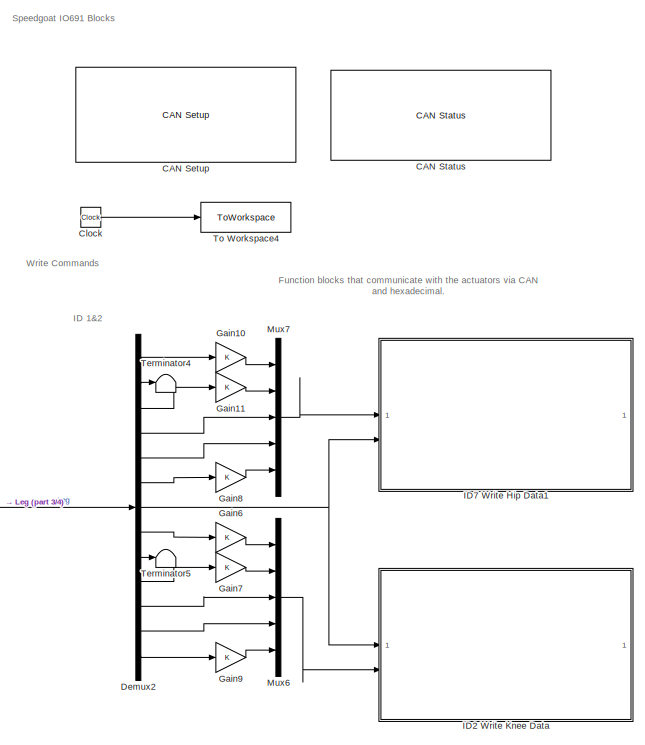
[diagram: root canvas - part 1/4, top right region]
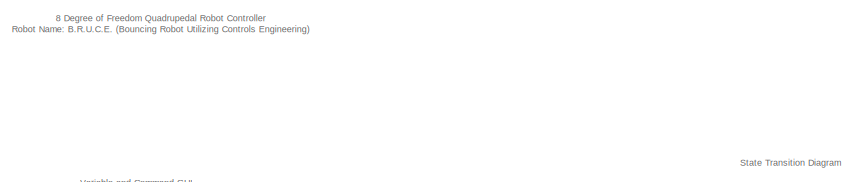
[diagram: root canvas - part 2/4, top left region]
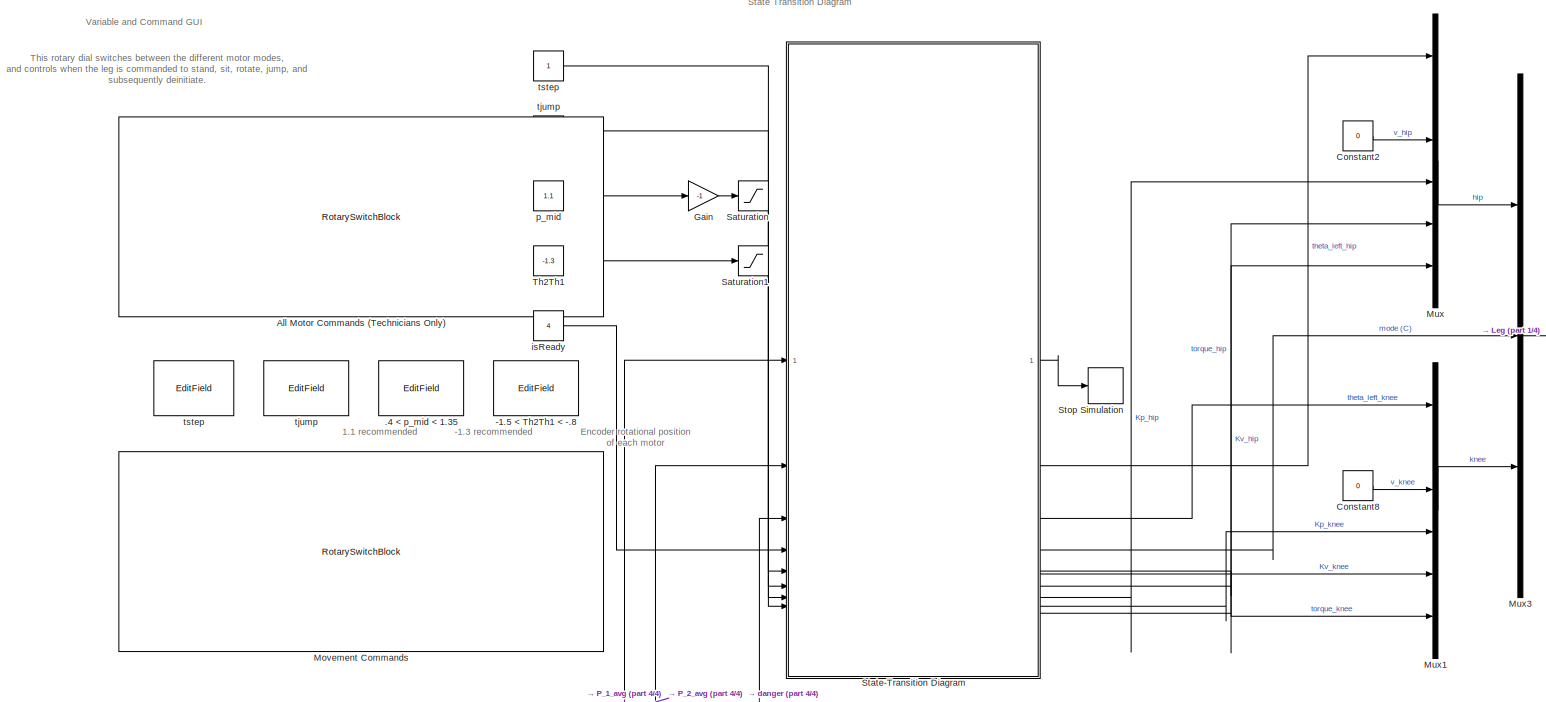
[diagram: root canvas - part 3/4, central region]
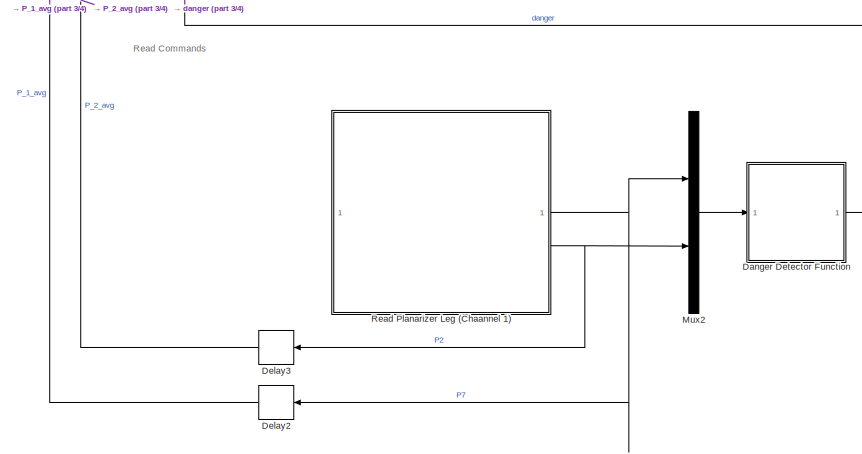
[diagram: root canvas - part 4/4, bottom center region]
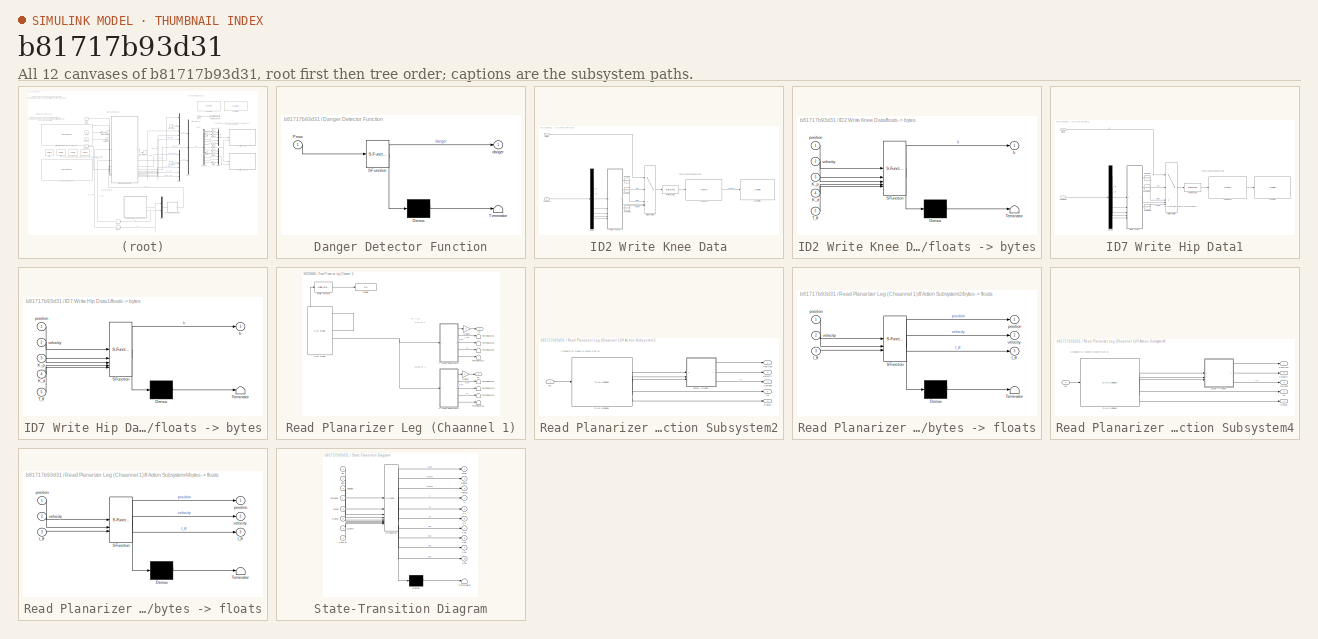
[diagram: thumbnail index - all 12 canvases of the model, root first then tree order]
MODEL slx_b81717b93d31
KIND model
CONFIG AbsTol = auto
CONFIG EnableMultiTasking = off
CONFIG FixedStep = 0.005
CONFIG MaxStep = auto
CONFIG MinStep = auto
CONFIG RelTol = 1e-3
CONFIG SampleTimeConstraint = Unconstrained
CONFIG SolverName = FixedStepAuto
CONFIG StartTime = 0.0
CONFIG StopTime = inf
BLOCK [Constant]  tjump 
  Value = 0.12
BLOCK [Constant]  tstep 
BLOCK [EditField] -1.5 < Th2Th1 < -.8
  Alignment = Center
  LabelPosition = Hide
  ShowInitialText = on
BLOCK [EditField] .4 < p_mid < 1.35
  Alignment = Center
  LabelPosition = Hide
  ShowInitialText = on
BLOCK [RotarySwitchBlock] All Motor Commands (Technicians Only) 
BLOCK [Reference] CAN Setup   REF=speedgoatlib_IO691/Legacy/CAN Setup 
  SourceBlock = speedgoatlib_IO691/Legacy/CAN Setup
  SourceProductName = Simulink Real-Time: Speedgoat I/O Blockset
  SourceType = setup_IO691
BLOCK [Reference] CAN Status  REF=speedgoatlib_IO691/Legacy/CAN Status
  SourceBlock = speedgoatlib_IO691/Legacy/CAN Status
  SourceProductName = Simulink Real-Time: Speedgoat I/O Blockset
  SourceType = status_IO691
  UserDataPersistent = on
BLOCK [Clock] Clock
BLOCK [Constant] Constant2
  Value = 0
BLOCK [Constant] Constant8
  Value = 0
BLOCK [SubSystem] Danger Detector Function
  ErrorFcn = Stateflow.Translate.translate
  PermitHierarchicalResolution = ExplicitOnly
  SFBlockType = MATLAB Function
  TreatAsAtomicUnit = on
BLOCK [Demux] Danger Detector Function/ Demux 
  Outputs = 1
BLOCK [S-Function] Danger Detector Function/ SFunction 
  EnableBusSupport = on
  FunctionName = sf_sfun
  PortCounts = [1 2]
  SFcnIsStateOwnerBlock = off
  SFunctionDeploymentMode = off
  Tag = Stateflow S-Function 6
BLOCK [Terminator] Danger Detector Function/ Terminator 
BLOCK [Inport] Danger Detector Function/Pmux
BLOCK [Outport] Danger Detector Function/danger
BLOCK [Delay] Delay2
  DelayLength = 1
  InputPortMap = u0
BLOCK [Delay] Delay3
  DelayLength = 1
  InputPortMap = u0
BLOCK [Demux] Demux2
  Outputs = 13
BLOCK [Gain] Gain
  Gain = -1
BLOCK [Gain] Gain10
BLOCK [Gain] Gain11
BLOCK [Gain] Gain6
BLOCK [Gain] Gain7
BLOCK [Gain] Gain8
BLOCK [Gain] Gain9
BLOCK [SubSystem] ID2 Write Knee Data
  TreatAsAtomicUnit = on
BLOCK [Reference] ID2 Write Knee Data/Byte Packing  REF=slrealtimeutilitieslib/Byte Packing
  SourceBlock = slrealtimeutilitieslib/Byte Packing
  SourceType = slrealtimebytepacking
BLOCK [Reference] ID2 Write Knee Data/CAN Pack1  REF=canmsglib/CAN Pack
  SourceBlock = canmsglib/CAN Pack
  SourceType = CAN Pack
BLOCK [Reference] ID2 Write Knee Data/CAN Write1  REF=speedgoatlib_IO691/Legacy/CAN Write
  SourceBlock = speedgoatlib_IO691/Legacy/CAN Write
  SourceProductName = Simulink Real-Time: Speedgoat I/O Blockset
  SourceType = write_IO691
BLOCK [Inport] ID2 Write Knee Data/Command
  Port = 2
BLOCK [Constant] ID2 Write Knee Data/Constant
  Value = [0xFF, 0xFF, 0xFF, 0xFF, 0xFF, 0xFF, 0xFF, 0xFE]
BLOCK [Constant] ID2 Write Knee Data/Constant1
  Value = [0xFF, 0xFF, 0xFF, 0xFF, 0xFF, 0xFF, 0xFF, 0xFC]
BLOCK [Constant] ID2 Write Knee Data/Constant2
  Value = [0xFF, 0xFF, 0xFF, 0xFF, 0xFF, 0xFF, 0xFF, 0xFD]
BLOCK [Demux] ID2 Write Knee Data/Demux
  Outputs = 5
BLOCK [Inport] ID2 Write Knee Data/Mode
BLOCK [MultiPortSwitch] ID2 Write Knee Data/Multiport Switch
  DiagnosticForDefault = None
  InputSameDT = off
  Inputs = 4
  SaturateOnIntegerOverflow = off
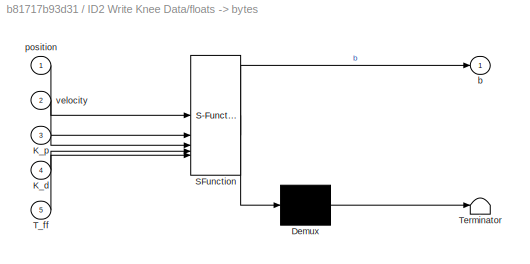
BLOCK [SubSystem] ID2 Write Knee Data/floats -> bytes
  ErrorFcn = Stateflow.Translate.translate
  PermitHierarchicalResolution = ExplicitOnly
  SFBlockType = MATLAB Function
  TreatAsAtomicUnit = on
BLOCK [Demux] ID2 Write Knee Data/floats -> bytes/ Demux 
  Outputs = 1
BLOCK [S-Function] ID2 Write Knee Data/floats -> bytes/ SFunction 
  EnableBusSupport = on
  FunctionName = sf_sfun
  PortCounts = [5 2]
  SFcnIsStateOwnerBlock = off
  SFunctionDeploymentMode = off
  Tag = Stateflow S-Function 13
BLOCK [Terminator] ID2 Write Knee Data/floats -> bytes/ Terminator 
BLOCK [Inport] ID2 Write Knee Data/floats -> bytes/K_d
  Port = 4
BLOCK [Inport] ID2 Write Knee Data/floats -> bytes/K_p
  Port = 3
BLOCK [Inport] ID2 Write Knee Data/floats -> bytes/T_ff
  Port = 5
BLOCK [Outport] ID2 Write Knee Data/floats -> bytes/b
BLOCK [Inport] ID2 Write Knee Data/floats -> bytes/position
BLOCK [Inport] ID2 Write Knee Data/floats -> bytes/velocity
  Port = 2
BLOCK [SubSystem] ID7 Write Hip Data1
  TreatAsAtomicUnit = on
BLOCK [Reference] ID7 Write Hip Data1/Byte Packing  REF=slrealtimeutilitieslib/Byte Packing
  SourceBlock = slrealtimeutilitieslib/Byte Packing
  SourceType = slrealtimebytepacking
BLOCK [Reference] ID7 Write Hip Data1/CAN Pack1  REF=canmsglib/CAN Pack
  SourceBlock = canmsglib/CAN Pack
  SourceType = CAN Pack
BLOCK [Reference] ID7 Write Hip Data1/CAN Write1  REF=speedgoatlib_IO691/Legacy/CAN Write
  SourceBlock = speedgoatlib_IO691/Legacy/CAN Write
  SourceProductName = Simulink Real-Time: Speedgoat I/O Blockset
  SourceType = write_IO691
BLOCK [Inport] ID7 Write Hip Data1/Command
BLOCK [Constant] ID7 Write Hip Data1/Constant
  Value = [0xFF, 0xFF, 0xFF, 0xFF, 0xFF, 0xFF, 0xFF, 0xFE]
BLOCK [Constant] ID7 Write Hip Data1/Constant1
  Value = [0xFF, 0xFF, 0xFF, 0xFF, 0xFF, 0xFF, 0xFF, 0xFC]
BLOCK [Constant] ID7 Write Hip Data1/Constant2
  Value = [0xFF, 0xFF, 0xFF, 0xFF, 0xFF, 0xFF, 0xFF, 0xFD]
BLOCK [Demux] ID7 Write Hip Data1/Demux
  Outputs = 5
BLOCK [Inport] ID7 Write Hip Data1/Mode
  Port = 2
BLOCK [MultiPortSwitch] ID7 Write Hip Data1/Multiport Switch
  DiagnosticForDefault = None
  InputSameDT = off
  Inputs = 4
  SaturateOnIntegerOverflow = off
BLOCK [SubSystem] ID7 Write Hip Data1/floats -> bytes
  ErrorFcn = Stateflow.Translate.translate
  PermitHierarchicalResolution = ExplicitOnly
  SFBlockType = MATLAB Function
  TreatAsAtomicUnit = on
BLOCK [Demux] ID7 Write Hip Data1/floats -> bytes/ Demux 
  Outputs = 1
BLOCK [S-Function] ID7 Write Hip Data1/floats -> bytes/ SFunction 
  EnableBusSupport = on
  FunctionName = sf_sfun
  PortCounts = [5 2]
  SFcnIsStateOwnerBlock = off
  SFunctionDeploymentMode = off
  Tag = Stateflow S-Function 4
BLOCK [Terminator] ID7 Write Hip Data1/floats -> bytes/ Terminator 
BLOCK [Inport] ID7 Write Hip Data1/floats -> bytes/K_d
  Port = 4
BLOCK [Inport] ID7 Write Hip Data1/floats -> bytes/K_p
  Port = 3
BLOCK [Inport] ID7 Write Hip Data1/floats -> bytes/T_ff
  Port = 5
BLOCK [Outport] ID7 Write Hip Data1/floats -> bytes/b
BLOCK [Inport] ID7 Write Hip Data1/floats -> bytes/position
BLOCK [Inport] ID7 Write Hip Data1/floats -> bytes/velocity
  Port = 2
BLOCK [RotarySwitchBlock] Movement Commands
BLOCK [Mux] Mux
  DisplayOption = bar
  Inputs = 6
BLOCK [Mux] Mux1
  DisplayOption = bar
  Inputs = 6
BLOCK [Mux] Mux2
  DisplayOption = bar
  Inputs = 2
BLOCK [Mux] Mux3
  DisplayOption = bar
  Inputs = 3
BLOCK [Mux] Mux6
  DisplayOption = bar
  Inputs = 5
BLOCK [Mux] Mux7
  DisplayOption = bar
  Inputs = 5
BLOCK [SubSystem] Read Planarizer Leg (Chaannel 1)
  TreatAsAtomicUnit = on
BLOCK [Reference] Read Planarizer Leg (Chaannel 1)/CAN Read  REF=speedgoatlib_IO691/Legacy/CAN Read
  SourceBlock = speedgoatlib_IO691/Legacy/CAN Read
  SourceProductName = Simulink Real-Time: Speedgoat I/O Blockset
  SourceType = read_IO691
BLOCK [Display] Read Planarizer Leg (Chaannel 1)/Display
  Decimation = 1
BLOCK [Gain] Read Planarizer Leg (Chaannel 1)/Gain29
BLOCK [Gain] Read Planarizer Leg (Chaannel 1)/Gain30
BLOCK [SubSystem] Read Planarizer Leg (Chaannel 1)/If Action Subsystem2
  TreatAsAtomicUnit = on
BLOCK [Reference] Read Planarizer Leg (Chaannel 1)/If Action Subsystem2/CAN Unpack  REF=canmsglib/CAN Unpack
  SourceBlock = canmsglib/CAN Unpack
  SourceType = CAN Unpack
BLOCK [Outport] Read Planarizer Leg (Chaannel 1)/If Action Subsystem2/Current
  Port = 3
BLOCK [Outport] Read Planarizer Leg (Chaannel 1)/If Action Subsystem2/ID
  Port = 4
BLOCK [Inport] Read Planarizer Leg (Chaannel 1)/If Action Subsystem2/In1
BLOCK [Outport] Read Planarizer Leg (Chaannel 1)/If Action Subsystem2/Position
BLOCK [Outport] Read Planarizer Leg (Chaannel 1)/If Action Subsystem2/Status
  Port = 5
BLOCK [Outport] Read Planarizer Leg (Chaannel 1)/If Action Subsystem2/Velocity
  Port = 2
BLOCK [SubSystem] Read Planarizer Leg (Chaannel 1)/If Action Subsystem2/bytes -> floats
  ErrorFcn = Stateflow.Translate.translate
  PermitHierarchicalResolution = ExplicitOnly
  SFBlockType = MATLAB Function
  TreatAsAtomicUnit = on
BLOCK [Demux] Read Planarizer Leg (Chaannel 1)/If Action Subsystem2/bytes -> floats/ Demux 
  Outputs = 1
BLOCK [S-Function] Read Planarizer Leg (Chaannel 1)/If Action Subsystem2/bytes -> floats/ SFunction 
  EnableBusSupport = on
  FunctionName = sf_sfun
  PortCounts = [3 4]
  SFcnIsStateOwnerBlock = off
  SFunctionDeploymentMode = off
  Tag = Stateflow S-Function 2
BLOCK [Terminator] Read Planarizer Leg (Chaannel 1)/If Action Subsystem2/bytes -> floats/ Terminator 
BLOCK [Outport] Read Planarizer Leg (Chaannel 1)/If Action Subsystem2/bytes -> floats/I_ff
  Port = 3
BLOCK [Inport] Read Planarizer Leg (Chaannel 1)/If Action Subsystem2/bytes -> floats/I_ff 
  Port = 3
BLOCK [Outport] Read Planarizer Leg (Chaannel 1)/If Action Subsystem2/bytes -> floats/position
BLOCK [Inport] Read Planarizer Leg (Chaannel 1)/If Action Subsystem2/bytes -> floats/position 
BLOCK [Outport] Read Planarizer Leg (Chaannel 1)/If Action Subsystem2/bytes -> floats/velocity
  Port = 2
BLOCK [Inport] Read Planarizer Leg (Chaannel 1)/If Action Subsystem2/bytes -> floats/velocity 
  Port = 2
BLOCK [SubSystem] Read Planarizer Leg (Chaannel 1)/If Action Subsystem4
  TreatAsAtomicUnit = on
BLOCK [Reference] Read Planarizer Leg (Chaannel 1)/If Action Subsystem4/CAN Unpack  REF=canmsglib/CAN Unpack
  SourceBlock = canmsglib/CAN Unpack
  SourceType = CAN Unpack
BLOCK [Outport] Read Planarizer Leg (Chaannel 1)/If Action Subsystem4/Current
  Port = 3
BLOCK [Outport] Read Planarizer Leg (Chaannel 1)/If Action Subsystem4/ID
  Port = 4
BLOCK [Inport] Read Planarizer Leg (Chaannel 1)/If Action Subsystem4/In1
BLOCK [Outport] Read Planarizer Leg (Chaannel 1)/If Action Subsystem4/Position
BLOCK [Outport] Read Planarizer Leg (Chaannel 1)/If Action Subsystem4/Status
  Port = 5
BLOCK [Outport] Read Planarizer Leg (Chaannel 1)/If Action Subsystem4/Velocity
  Port = 2
BLOCK [SubSystem] Read Planarizer Leg (Chaannel 1)/If Action Subsystem4/bytes -> floats
  ErrorFcn = Stateflow.Translate.translate
  PermitHierarchicalResolution = ExplicitOnly
  SFBlockType = MATLAB Function
  TreatAsAtomicUnit = on
BLOCK [Demux] Read Planarizer Leg (Chaannel 1)/If Action Subsystem4/bytes -> floats/ Demux 
  Outputs = 1
BLOCK [S-Function] Read Planarizer Leg (Chaannel 1)/If Action Subsystem4/bytes -> floats/ SFunction 
  EnableBusSupport = on
  FunctionName = sf_sfun
  PortCounts = [3 4]
  SFcnIsStateOwnerBlock = off
  SFunctionDeploymentMode = off
  Tag = Stateflow S-Function 1
BLOCK [Terminator] Read Planarizer Leg (Chaannel 1)/If Action Subsystem4/bytes -> floats/ Terminator 
BLOCK [Outport] Read Planarizer Leg (Chaannel 1)/If Action Subsystem4/bytes -> floats/I_ff
  Port = 3
BLOCK [Inport] Read Planarizer Leg (Chaannel 1)/If Action Subsystem4/bytes -> floats/I_ff 
  Port = 3
BLOCK [Outport] Read Planarizer Leg (Chaannel 1)/If Action Subsystem4/bytes -> floats/position
BLOCK [Inport] Read Planarizer Leg (Chaannel 1)/If Action Subsystem4/bytes -> floats/position 
BLOCK [Outport] Read Planarizer Leg (Chaannel 1)/If Action Subsystem4/bytes -> floats/velocity
  Port = 2
BLOCK [Inport] Read Planarizer Leg (Chaannel 1)/If Action Subsystem4/bytes -> floats/velocity 
  Port = 2
BLOCK [Outport] Read Planarizer Leg (Chaannel 1)/P2
  Port = 2
BLOCK [Outport] Read Planarizer Leg (Chaannel 1)/P7
BLOCK [Terminator] Read Planarizer Leg (Chaannel 1)/Terminator16
BLOCK [Terminator] Read Planarizer Leg (Chaannel 1)/Terminator17
BLOCK [Terminator] Read Planarizer Leg (Chaannel 1)/Terminator18
BLOCK [Terminator] Read Planarizer Leg (Chaannel 1)/Terminator19
BLOCK [Terminator] Read Planarizer Leg (Chaannel 1)/Terminator20
BLOCK [Terminator] Read Planarizer Leg (Chaannel 1)/Terminator21
BLOCK [Terminator] Read Planarizer Leg (Chaannel 1)/Terminator22
BLOCK [Terminator] Read Planarizer Leg (Chaannel 1)/Terminator23
BLOCK [WhileIterator] Read Planarizer Leg (Chaannel 1)/While Iterator
  MaxIters = -1
  ResetStates = reset
  ShowIterationPort = on
  WhileBlockType = do-while
BLOCK [Saturate] Saturation
  LowerLimit = -1.35
  UpperLimit = -.4
BLOCK [Saturate] Saturation1
  LowerLimit = -1.5
  UpperLimit = -.8
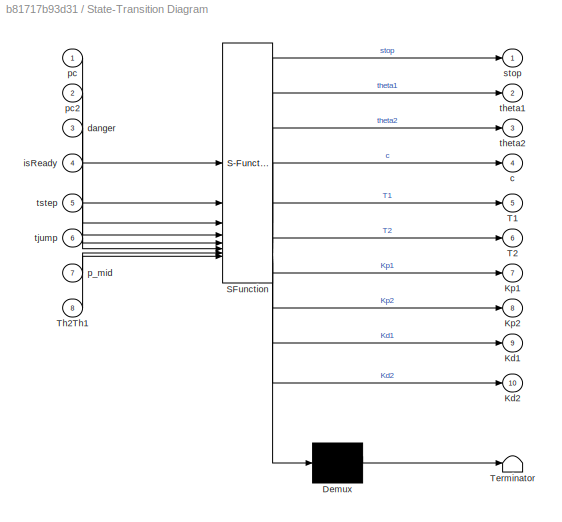
BLOCK [SubSystem] State-Transition Diagram
  ErrorFcn = Stateflow.Translate.translate
  PermitHierarchicalResolution = ExplicitOnly
  PortSchema = {"entries":[{"content":{"sides":[{"content":{"connectorIds":["In5","In6","In7","In8","In4","In1","In2","In3"]},"type":"ConnectorPlacement.EquallySpacedRectSide","uuid":"09499f21-f50c-4ce4-914e-8b9942bcc246"},{"content":{"connectorIds":["Out2","Out7","Out9","Out5","Out4","Out1","Out3","Out8","Out10","Out6"],"side":"RIGHT"},"type":"ConnectorPlacement.EquallySpacedRectSide","uuid":"b935e908-ace3-4dfb...<+328ch>
  SFBlockType = Chart
  TreatAsAtomicUnit = on
BLOCK [Demux] State-Transition Diagram/ Demux 
  Outputs = 1
BLOCK [S-Function] State-Transition Diagram/ SFunction 
  EnableBusSupport = on
  FunctionName = sf_sfun
  PortCounts = [8 11]
  SFcnIsStateOwnerBlock = off
  SFunctionDeploymentMode = off
  Tag = Stateflow S-Function 8
BLOCK [Terminator] State-Transition Diagram/ Terminator 
BLOCK [Outport] State-Transition Diagram/Kd1
  Port = 9
BLOCK [Outport] State-Transition Diagram/Kd2
  Port = 10
BLOCK [Outport] State-Transition Diagram/Kp1
  Port = 7
BLOCK [Outport] State-Transition Diagram/Kp2
  Port = 8
BLOCK [Outport] State-Transition Diagram/T1
  Port = 5
BLOCK [Outport] State-Transition Diagram/T2
  Port = 6
BLOCK [Inport] State-Transition Diagram/Th2Th1
  Port = 8
BLOCK [Outport] State-Transition Diagram/c
  Port = 4
BLOCK [Inport] State-Transition Diagram/danger
  Port = 3
BLOCK [Inport] State-Transition Diagram/isReady
  Port = 4
BLOCK [Inport] State-Transition Diagram/p_mid
  Port = 7
BLOCK [Inport] State-Transition Diagram/pc
BLOCK [Inport] State-Transition Diagram/pc2
  Port = 2
BLOCK [Outport] State-Transition Diagram/stop
BLOCK [Outport] State-Transition Diagram/theta1
  Port = 2
BLOCK [Outport] State-Transition Diagram/theta2
  Port = 3
BLOCK [Inport] State-Transition Diagram/tjump
  Port = 6
BLOCK [Inport] State-Transition Diagram/tstep
  Port = 5
BLOCK [Stop] Stop Simulation
BLOCK [Terminator] Terminator4
BLOCK [Terminator] Terminator5
BLOCK [Constant] Th2Th1
  Value = -1.3
BLOCK [ToWorkspace] To Workspace4
  FixptAsFi = on
  MaxDataPoints = inf
  SampleTime = -1
  VariableName = timeout
BLOCK [Constant] isReady
  Value = 4
BLOCK [Constant] p_mid
  Value = 1.1
BLOCK [EditField] tjump
  Alignment = Center
  LabelPosition = Hide
  ShowInitialText = on
BLOCK [EditField] tstep
  Alignment = Center
  LabelPosition = Hide
  ShowInitialText = on
ANNOTATION (root): -1.3 recommended
ANNOTATION (root): 1.1 recommended
ANNOTATION (root): State Transition Diagram
ANNOTATION (root): 8 Degree of Freedom Quadrupedal Robot Controller Robot Name: B.R.U.C.E. (Bouncing Robot Utilizing Controls Engineering)
ANNOTATION (root): Encoder rotational position of each motor
ANNOTATION (root): Function blocks that communicate with the actuators via CAN and hexadecimal.
ANNOTATION (root): ID 1&2
ANNOTATION (root): Read Commands
ANNOTATION (root): Speedgoat IO691 Blocks
ANNOTATION (root): This rotary dial switches between the different motor modes, and controls when the leg is commanded to stand, sit, rotate, jump, and subsequently deinitiate.
ANNOTATION (root): Variable and Command GUI
ANNOTATION (root): Write Commands
ANNOTATION ID2 Write Knee Data: Standard ID Needs to Match Can ID
ANNOTATION ID7 Write Hip Data1: Converts inputted data to an 8-bit unsigned integer
ANNOTATION ID7 Write Hip Data1: Standard ID Needs to Match Can ID
ANNOTATION Read Planarizer Leg (Chaannel 1): HIP ID 7
ANNOTATION Read Planarizer Leg (Chaannel 1): ID 7 & 2
ANNOTATION Read Planarizer Leg (Chaannel 1): KNEE ID 2
ANNOTATION Read Planarizer Leg (Chaannel 1)/If Action Subsystem2: Standard ID Needs to Match Can ID
ANNOTATION Read Planarizer Leg (Chaannel 1)/If Action Subsystem4: Standard ID Needs to Match Can ID
LINE  tjump :1 -> State-Transition Diagram:6
LINE  tstep :1 -> State-Transition Diagram:5
LINE Clock:1 -> To Workspace4:1
LINE Constant2:1 -> Mux:3
LINE Constant8:1 -> Mux1:3
LINE Danger Detector Function:1 -> State-Transition Diagram:3
LINE Delay2:1 -> State-Transition Diagram:1
LINE Delay3:1 -> State-Transition Diagram:2
LINE Demux2:1 -> Gain10:1
LINE Demux2:10 -> Gain7:1
LINE Demux2:11 -> Mux6:3
LINE Demux2:12 -> Mux6:4
LINE Demux2:13 -> Gain9:1
LINE Demux2:2 -> Terminator4:1
LINE Demux2:3 -> Gain11:1
LINE Demux2:4 -> Mux7:3
LINE Demux2:5 -> Mux7:4
LINE Demux2:6 -> Gain8:1
NET Demux2:7 -> ID2 Write Knee Data:1, ID7 Write Hip Data1:2
LINE Demux2:8 -> Gain6:1
LINE Demux2:9 -> Terminator5:1
LINE Gain10:1 -> Mux7:1
LINE Gain11:1 -> Mux7:2
LINE Gain6:1 -> Mux6:1
LINE Gain7:1 -> Mux6:2
LINE Gain8:1 -> Mux7:5
LINE Gain9:1 -> Mux6:5
LINE Gain:1 -> Saturation:1
LINE ID2 Write Knee Data/Byte Packing:1 -> ID2 Write Knee Data/CAN Pack1:1
LINE ID2 Write Knee Data/CAN Pack1:1 -> ID2 Write Knee Data/CAN Write1:1
LINE ID2 Write Knee Data/Command:1 -> ID2 Write Knee Data/Demux:1
LINE ID2 Write Knee Data/Constant1:1 -> ID2 Write Knee Data/Multiport Switch:3
LINE ID2 Write Knee Data/Constant2:1 -> ID2 Write Knee Data/Multiport Switch:5
LINE ID2 Write Knee Data/Constant:1 -> ID2 Write Knee Data/Multiport Switch:2
LINE ID2 Write Knee Data/Demux:1 -> ID2 Write Knee Data/floats -> bytes:1
LINE ID2 Write Knee Data/Demux:2 -> ID2 Write Knee Data/floats -> bytes:2
LINE ID2 Write Knee Data/Demux:3 -> ID2 Write Knee Data/floats -> bytes:3
LINE ID2 Write Knee Data/Demux:4 -> ID2 Write Knee Data/floats -> bytes:4
LINE ID2 Write Knee Data/Demux:5 -> ID2 Write Knee Data/floats -> bytes:5
LINE ID2 Write Knee Data/Mode:1 -> ID2 Write Knee Data/Multiport Switch:1
LINE ID2 Write Knee Data/Multiport Switch:1 -> ID2 Write Knee Data/Byte Packing:1
LINE ID2 Write Knee Data/floats -> bytes:1 -> ID2 Write Knee Data/Multiport Switch:4
LINE ID7 Write Hip Data1/Byte Packing:1 -> ID7 Write Hip Data1/CAN Pack1:1
LINE ID7 Write Hip Data1/CAN Pack1:1 -> ID7 Write Hip Data1/CAN Write1:1
LINE ID7 Write Hip Data1/Command:1 -> ID7 Write Hip Data1/Demux:1
LINE ID7 Write Hip Data1/Constant1:1 -> ID7 Write Hip Data1/Multiport Switch:3
LINE ID7 Write Hip Data1/Constant2:1 -> ID7 Write Hip Data1/Multiport Switch:5
LINE ID7 Write Hip Data1/Constant:1 -> ID7 Write Hip Data1/Multiport Switch:2
LINE ID7 Write Hip Data1/Demux:1 -> ID7 Write Hip Data1/floats -> bytes:1
LINE ID7 Write Hip Data1/Demux:2 -> ID7 Write Hip Data1/floats -> bytes:2
LINE ID7 Write Hip Data1/Demux:3 -> ID7 Write Hip Data1/floats -> bytes:3
LINE ID7 Write Hip Data1/Demux:4 -> ID7 Write Hip Data1/floats -> bytes:4
LINE ID7 Write Hip Data1/Demux:5 -> ID7 Write Hip Data1/floats -> bytes:5
LINE ID7 Write Hip Data1/Mode:1 -> ID7 Write Hip Data1/Multiport Switch:1
LINE ID7 Write Hip Data1/Multiport Switch:1 -> ID7 Write Hip Data1/Byte Packing:1
LINE ID7 Write Hip Data1/floats -> bytes:1 -> ID7 Write Hip Data1/Multiport Switch:4
LINE Mux1:1 -> Mux3:3
LINE Mux2:1 -> Danger Detector Function:1
LINE Mux3:1 -> Demux2:1
LINE Mux6:1 -> ID2 Write Knee Data:2
LINE Mux7:1 -> ID7 Write Hip Data1:1
LINE Mux:1 -> Mux3:1
LINE Read Planarizer Leg (Chaannel 1)/CAN Read:1 -> Read Planarizer Leg (Chaannel 1)/While Iterator:1
NET Read Planarizer Leg (Chaannel 1)/CAN Read:2 -> Read Planarizer Leg (Chaannel 1)/If Action Subsystem2:1, Read Planarizer Leg (Chaannel 1)/If Action Subsystem4:1
LINE Read Planarizer Leg (Chaannel 1)/Gain29:1 -> Read Planarizer Leg (Chaannel 1)/P7:1
LINE Read Planarizer Leg (Chaannel 1)/Gain30:1 -> Read Planarizer Leg (Chaannel 1)/P2:1
LINE Read Planarizer Leg (Chaannel 1)/If Action Subsystem2/CAN Unpack:1 -> Read Planarizer Leg (Chaannel 1)/If Action Subsystem2/bytes -> floats:1
LINE Read Planarizer Leg (Chaannel 1)/If Action Subsystem2/CAN Unpack:2 -> Read Planarizer Leg (Chaannel 1)/If Action Subsystem2/bytes -> floats:2
LINE Read Planarizer Leg (Chaannel 1)/If Action Subsystem2/CAN Unpack:3 -> Read Planarizer Leg (Chaannel 1)/If Action Subsystem2/bytes -> floats:3
LINE Read Planarizer Leg (Chaannel 1)/If Action Subsystem2/CAN Unpack:4 -> Read Planarizer Leg (Chaannel 1)/If Action Subsystem2/ID:1
LINE Read Planarizer Leg (Chaannel 1)/If Action Subsystem2/CAN Unpack:5 -> Read Planarizer Leg (Chaannel 1)/If Action Subsystem2/Status:1
LINE Read Planarizer Leg (Chaannel 1)/If Action Subsystem2/In1:1 -> Read Planarizer Leg (Chaannel 1)/If Action Subsystem2/CAN Unpack:1
LINE Read Planarizer Leg (Chaannel 1)/If Action Subsystem2/bytes -> floats:1 -> Read Planarizer Leg (Chaannel 1)/If Action Subsystem2/Position:1
LINE Read Planarizer Leg (Chaannel 1)/If Action Subsystem2/bytes -> floats:2 -> Read Planarizer Leg (Chaannel 1)/If Action Subsystem2/Velocity:1
LINE Read Planarizer Leg (Chaannel 1)/If Action Subsystem2/bytes -> floats:3 -> Read Planarizer Leg (Chaannel 1)/If Action Subsystem2/Current:1
LINE Read Planarizer Leg (Chaannel 1)/If Action Subsystem2:1 -> Read Planarizer Leg (Chaannel 1)/Gain30:1
LINE Read Planarizer Leg (Chaannel 1)/If Action Subsystem2:2 -> Read Planarizer Leg (Chaannel 1)/Terminator18:1
LINE Read Planarizer Leg (Chaannel 1)/If Action Subsystem2:3 -> Read Planarizer Leg (Chaannel 1)/Terminator19:1
LINE Read Planarizer Leg (Chaannel 1)/If Action Subsystem2:4 -> Read Planarizer Leg (Chaannel 1)/Terminator20:1
LINE Read Planarizer Leg (Chaannel 1)/If Action Subsystem2:5 -> Read Planarizer Leg (Chaannel 1)/Terminator21:1
LINE Read Planarizer Leg (Chaannel 1)/If Action Subsystem4/CAN Unpack:1 -> Read Planarizer Leg (Chaannel 1)/If Action Subsystem4/bytes -> floats:1
LINE Read Planarizer Leg (Chaannel 1)/If Action Subsystem4/CAN Unpack:2 -> Read Planarizer Leg (Chaannel 1)/If Action Subsystem4/bytes -> floats:2
LINE Read Planarizer Leg (Chaannel 1)/If Action Subsystem4/CAN Unpack:3 -> Read Planarizer Leg (Chaannel 1)/If Action Subsystem4/bytes -> floats:3
LINE Read Planarizer Leg (Chaannel 1)/If Action Subsystem4/CAN Unpack:4 -> Read Planarizer Leg (Chaannel 1)/If Action Subsystem4/ID:1
LINE Read Planarizer Leg (Chaannel 1)/If Action Subsystem4/CAN Unpack:5 -> Read Planarizer Leg (Chaannel 1)/If Action Subsystem4/Status:1
LINE Read Planarizer Leg (Chaannel 1)/If Action Subsystem4/In1:1 -> Read Planarizer Leg (Chaannel 1)/If Action Subsystem4/CAN Unpack:1
LINE Read Planarizer Leg (Chaannel 1)/If Action Subsystem4/bytes -> floats:1 -> Read Planarizer Leg (Chaannel 1)/If Action Subsystem4/Position:1
LINE Read Planarizer Leg (Chaannel 1)/If Action Subsystem4/bytes -> floats:2 -> Read Planarizer Leg (Chaannel 1)/If Action Subsystem4/Velocity:1
LINE Read Planarizer Leg (Chaannel 1)/If Action Subsystem4/bytes -> floats:3 -> Read Planarizer Leg (Chaannel 1)/If Action Subsystem4/Current:1
LINE Read Planarizer Leg (Chaannel 1)/If Action Subsystem4:1 -> Read Planarizer Leg (Chaannel 1)/Gain29:1
LINE Read Planarizer Leg (Chaannel 1)/If Action Subsystem4:2 -> Read Planarizer Leg (Chaannel 1)/Terminator22:1
LINE Read Planarizer Leg (Chaannel 1)/If Action Subsystem4:3 -> Read Planarizer Leg (Chaannel 1)/Terminator23:1
LINE Read Planarizer Leg (Chaannel 1)/If Action Subsystem4:4 -> Read Planarizer Leg (Chaannel 1)/Terminator16:1
LINE Read Planarizer Leg (Chaannel 1)/If Action Subsystem4:5 -> Read Planarizer Leg (Chaannel 1)/Terminator17:1
LINE Read Planarizer Leg (Chaannel 1)/While Iterator:1 -> Read Planarizer Leg (Chaannel 1)/Display:1
NET Read Planarizer Leg (Chaannel 1):1 -> Delay2:1, Mux2:1
NET Read Planarizer Leg (Chaannel 1):2 -> Delay3:1, Mux2:2
LINE Saturation1:1 -> State-Transition Diagram:8
LINE Saturation:1 -> State-Transition Diagram:7
LINE State-Transition Diagram:1 -> Stop Simulation:1
LINE State-Transition Diagram:10 -> Mux1:5
LINE State-Transition Diagram:2 -> Mux:1
LINE State-Transition Diagram:3 -> Mux1:1
LINE State-Transition Diagram:4 -> Mux3:2
LINE State-Transition Diagram:5 -> Mux:6
LINE State-Transition Diagram:6 -> Mux1:6
LINE State-Transition Diagram:7 -> Mux:4
LINE State-Transition Diagram:8 -> Mux1:4
LINE State-Transition Diagram:9 -> Mux:5
LINE Th2Th1:1 -> Saturation1:1
LINE isReady:1 -> State-Transition Diagram:4
LINE p_mid:1 -> Gain:1
note: NET lines group one-source signal fan-out (src -> all destinations, sorted); 1:1 wires keep LINE
CHART Read Planarizer Leg (Chaannel 1)/If Action
Subsystem4/bytes -> floats states=1 transitions=1
  STATE_LABEL 'eML_blk_kernel()'
  STATE_LABEL 'SCRIPT:\nfunction [position, velocity, I_ff] = fcn(position, velocity, I_ff)\n\nP_MIN  =-95.5;  % [rad]\nP_MAX  = 95.5;  % [rad]\nV_MIN  =-45;    % [rad/s]\nV_MAX  = 45;    % [rad/s]\nI_MIN  =-40;    % []\nI_MAX  = 40;    % []\n\nposition = position*(P_MAX  - P_MIN)/65535+ P_MIN;\nvelocity = velocity*(V_MAX  - V_MIN)/4095 + V_MIN;\nI_ff     = I_ff*(I_MAX  - I_MIN)/4095 + I_MIN;'
CHART Read Planarizer Leg (Chaannel 1)/If Action
Subsystem2/bytes -> floats states=1 transitions=1
  STATE_LABEL 'eML_blk_kernel()'
  STATE_LABEL 'SCRIPT:\nfunction [position, velocity, I_ff] = fcn(position, velocity, I_ff)\n\nP_MIN  =-95.5;  % [rad]\nP_MAX  = 95.5;  % [rad]\nV_MIN  =-45;    % [rad/s]\nV_MAX  = 45;    % [rad/s]\nI_MIN  =-40;    % []\nI_MAX  = 40;    % []\n\nposition = position*(P_MAX  - P_MIN)/65535+ P_MIN;\nvelocity = velocity*(V_MAX  - V_MIN)/4095 + V_MIN;\nI_ff     = I_ff*(I_MAX  - I_MIN)/4095 + I_MIN;'
CHART ID7 Write Hip Data1/floats -> bytes states=1 transitions=1
  STATE_LABEL 'eML_blk_kernel()'
  STATE_LABEL 'SCRIPT:\nfunction b = fcn(position, velocity, K_p, K_d, T_ff)\n\nP_MIN  =-95.5;  % [rad]\nP_MAX  = 95.5;  % [rad]\nV_MIN  =-45;    % [rad/s] 30 to 45\nV_MAX  = 45;    % [rad/s]\nKP_MIN = 0;     % [Nm/rad]\nKP_MAX = 500;   % [Nm/rad]\nKD_MIN = 0;     % [Nm*s/rad\nKD_MAX = 5;     % [Nm*s/rad\nT_MIN  =-18;    % [Nm]\nT_MAX  = 18;    % [Nm]\n\nposition = floor((max(min(position,P_MAX) ,P_MIN)  - P_MIN )*65535/(P_MA...<+891ch>'
CHART Danger Detector Function states=1 transitions=1
  STATE_LABEL 'eML_blk_kernel()'
  STATE_LABEL 'SCRIPT:\nfunction danger = isDanger(Pmux)\n    % Pmux position matrix radians\n    %       [p(ID1),p(ID2),p(ID3),p(IDN)]\n\n    \n    p1Max = 2; \n    p1Min = -2;\n    p2Max = 2;\n    p2Min = -2;\n    \n    P1 = Pmux(1:2:end);\n    P2 = Pmux(2:2:end);\n       \n    danger = 0;\n    if((0<sum([P1>p1Max] + [P1<p1Min] - [P1<=-95.5])) || (0<sum([P2>p2Max] + [P2<p2Min] - [P2<=-95.5])))\n    \n%     if((0<sum([P1>p1Max]...<+82ch>'
CHART State-Transition Diagram states=17 transitions=27
  STATE_LABEL 'Start'
  STATE_LABEL '<!DOCTYPE HTML PUBLIC "-//W3C//DTD HTML 4.0//EN" "http://www.w3.org/TR/REC-html40/strict.dtd">\n<html><head><meta name="qrichtext" content="1" /><style type="text/css">\np, li { white-space: pre-wrap; }\n</style></head><body align="left" style=" font-family:\'Helvetica\'; font-size:12px; font-weight:400; font-style:normal;">\n<p align="left" style=" margin-top:0px; margin-bottom:0px; margin-left:0px; ma...<+2358ch>'
  STATE_LABEL 'Zero\nentry:\nc = 1;'
  STATE_LABEL 'Init\nentry:\nc = 2;'
  STATE_LABEL 'SlowDown\nentry:\n%deinitiate mode\nc = 4'
  STATE_LABEL 'Command\nentry:\nc = 3;\np_sit = -.8;\np_stand = -1.35;\np_jump = -.4;'
  STATE_LABEL 'JumpPrep\nentry:\nto = t;\n% Left Side\ntheta1 = pc;\npo1 = theta1;\nslope1 = (pf - po1)/tstep;\ntheta2 = pc2;\npo2 = theta2;\nslope2 = (Th2Th1*pf - po2)/tstep;\nduring:\ntheta1  = po1  + slope1*(t-to);\ntheta2  = po2  + slope2*(t-to);'
  STATE_LABEL 'Stand\nentry:\nto = t;\n% Left Side\ntheta1 = pc;\npo1 = theta1;\nslope1 = (pf - po1)/tstep;\ntheta2 = pc2;\npo2 = theta2;\nslope2 = (Th2Th1*pf - po2)/tstep;\nduring:\ntheta1  = po1  + slope1*(t-to);\ntheta2  = po2  + slope2*(t-to);'
  STATE_LABEL 'Jump\nentry:\nto = t;\n% Left Side\ntheta1 = pc;\npo1 = theta1;\nslope1 = (pf - po1)/tjump;\ntheta2 = pc2;\npo2 = theta2;\nslope2 = (Th2Th1*pf - po2)/tjump;\nduring:\ntheta1  = po1  + slope1*(t-to);\ntheta2  = po2  + slope2*(t-to);'
  STATE_LABEL 'Idle\n\n'
  STATE_LABEL 'Land\nentry:\nto = t;\nKp1temp = Kp1\nKp2temp = Kp2\nKp1 = 15;\nKp2 = 15;\n% Left Side\ntheta1 = pc;\npo1 = theta1;\nslope1 = (pf - po1)/tjump;\ntheta2 = pc2;\npo2 = theta2;\nslope2 = (Th2Th1*pf - po2)/tjump;\nduring:\ntheta1  = po1  + slope1*(t-to);\ntheta2  = po2  + slope2*(t-to);\n'
  STATE_LABEL 'LeftUp\nentry:\nto = t;\n% Left Side\ntheta1 = pc;\npo1 = theta1;\nslope1 = (pf - po1)/tstep;\ntheta2 = pc2;\npo2 = theta2;\nslope2 = (Th2Th1*pf - po2)/tstep;\nduring:\ntheta1  = po1  + slope1*(t-to);\ntheta2  = po2  + slope2*(t-to);'
  STATE_LABEL 'RightUp\nentry:\nto = t;\n% Left Side\ntheta1 = pc;\npo1 = theta1;\nslope1 = (pf - po1)/tstep;\ntheta2 = pc2;\npo2 = theta2;\nslope2 = (Th2Th1*pf - po2)/tstep;\nduring:\ntheta1  = po1  + slope1*(t-to);\ntheta2  = po2  + slope2*(t-to);'
  STATE_LABEL 'Sit\nentry:\nto = t;\n% Left Side\ntheta1 = pc;\npo1 = theta1;\nslope1 = (pf - po1)/tstep;\ntheta2 = pc2;\npo2 = theta2;\nslope2 = (Th2Th1*pf - po2)/tstep;\nduring:\ntheta1  = po1  + slope1*(t-to);\ntheta2  = po2  + slope2*(t-to);'
  STATE_LABEL 'Idle1\nexit:\nKp1 = Kp1temp;\nKp2 = Kp2temp;\n'
  STATE_LABEL '{pf = p_sit;}'
  STATE_LABEL '[(theta1 >= pf & slope1>0) | (theta1 <= pf & slope1<0)]\n{theta1 = pf; theta2 = theta1 * Th2Th1;}'
  STATE_LABEL '[wasReady ~= isReady & isReady == 2]\n{pf = p_sit; wasReady = isReady;}'
  STATE_LABEL '[wasReady ~= isReady & isReady == 8]\n{pf = p_mid; wasReady = isReady;}'
  STATE_LABEL '[(theta1 >= pf & slope1>0) | (theta1 <= pf & slope1<0)]\n{theta1 = pf; theta2 = theta1 * Th2Th1;}'
  STATE_LABEL '[wasReady == 6 & isReady == 7]{pf = p_jump; wasReady = isReady;}'
  STATE_LABEL '[wasReady ~= isReady]'
  STATE_LABEL '[wasReady ~= isReady & isReady == 6]\n{pf = p_sit; wasReady = isReady;}'
  STATE_LABEL '[(theta1 >= pf & slope1>0) | (theta1 <= pf & slope1<0)]\n{theta1 = pf; theta2 = theta1 * Th2Th1;}'
  STATE_LABEL '[(theta1 >= pf & slope1>0) | (theta1 <= pf & slope1<0)]\n{theta1 = pf; theta2 = theta1 * Th2Th1;}'
  STATE_LABEL '[wasReady ~= isReady & isReady == 5]\n{pf = p_mid; wasReady = isReady;}'
  STATE_LABEL '[(theta1 >= pf & slope1>0) | (theta1 <= pf & slope1<0)]\n{theta1 = pf; theta2 = theta1 * Th2Th1;}'
  STATE_LABEL '[wasReady ~= isReady & isReady == 3]\n{pf = p_stand; wasReady = isReady;}'
  STATE_LABEL '[(theta1 >= pf & slope1>0) | (theta1 <= pf & slope1<0)]\n{theta1 = pf; theta2 = theta1 * Th2Th1;  pf = p_sit;}'
  STATE_LABEL '[(theta1 >= pf & slope1>0) | (theta1 <= pf & slope1<0)]\n{theta1 = pf; theta2 = theta1 * Th2Th1;}'
  STATE_LABEL 'JumpPrep\nentry:\nto = t;\n% Left Side\ntheta1 = pc;\npo1 = theta1;\nslope1 = (pf - po1)/tstep;\ntheta2 = pc2;\npo2 = theta2;\nslope2 = (Th2Th1*pf - po2)/tstep;\nduring:\ntheta1  = po1  + slope1*(t-to);\ntheta2  = po2  + slope2*(t-to);'
  STATE_LABEL 'Stand\nentry:\nto = t;\n% Left Side\ntheta1 = pc;\npo1 = theta1;\nslope1 = (pf - po1)/tstep;\ntheta2 = pc2;\npo2 = theta2;\nslope2 = (Th2Th1*pf - po2)/tstep;\nduring:\ntheta1  = po1  + slope1*(t-to);\ntheta2  = po2  + slope2*(t-to);'
  STATE_LABEL 'Jump\nentry:\nto = t;\n% Left Side\ntheta1 = pc;\npo1 = theta1;\nslope1 = (pf - po1)/tjump;\ntheta2 = pc2;\npo2 = theta2;\nslope2 = (Th2Th1*pf - po2)/tjump;\nduring:\ntheta1  = po1  + slope1*(t-to);\ntheta2  = po2  + slope2*(t-to);'
  STATE_LABEL 'Idle\n\n'
  STATE_LABEL 'Land\nentry:\nto = t;\nKp1temp = Kp1\nKp2temp = Kp2\nKp1 = 15;\nKp2 = 15;\n% Left Side\ntheta1 = pc;\npo1 = theta1;\nslope1 = (pf - po1)/tjump;\ntheta2 = pc2;\npo2 = theta2;\nslope2 = (Th2Th1*pf - po2)/tjump;\nduring:\ntheta1  = po1  + slope1*(t-to);\ntheta2  = po2  + slope2*(t-to);\n'
  STATE_LABEL 'LeftUp\nentry:\nto = t;\n% Left Side\ntheta1 = pc;\npo1 = theta1;\nslope1 = (pf - po1)/tstep;\ntheta2 = pc2;\npo2 = theta2;\nslope2 = (Th2Th1*pf - po2)/tstep;\nduring:\ntheta1  = po1  + slope1*(t-to);\ntheta2  = po2  + slope2*(t-to);'
  STATE_LABEL 'RightUp\nentry:\nto = t;\n% Left Side\ntheta1 = pc;\npo1 = theta1;\nslope1 = (pf - po1)/tstep;\ntheta2 = pc2;\npo2 = theta2;\nslope2 = (Th2Th1*pf - po2)/tstep;\nduring:\ntheta1  = po1  + slope1*(t-to);\ntheta2  = po2  + slope2*(t-to);'
  STATE_LABEL 'Sit\nentry:\nto = t;\n% Left Side\ntheta1 = pc;\npo1 = theta1;\nslope1 = (pf - po1)/tstep;\ntheta2 = pc2;\npo2 = theta2;\nslope2 = (Th2Th1*pf - po2)/tstep;\nduring:\ntheta1  = po1  + slope1*(t-to);\ntheta2  = po2  + slope2*(t-to);'
  STATE_LABEL 'Idle1\nexit:\nKp1 = Kp1temp;\nKp2 = Kp2temp;\n'
  STATE_LABEL 'FinalShutdown\nentry:\nKp1 = 0;\nKp2 = 0;\ntheta1 = 0;\ntheta2 = 0;\nT1 = 0;\nT2 = 0;\nKd1 = .1;\nKd2 = .1;\n'
CHART ID2 Write Knee Data/floats -> bytes states=1 transitions=1
  STATE_LABEL 'eML_blk_kernel()'
  STATE_LABEL 'SCRIPT:\nfunction b = fcn(position, velocity, K_p, K_d, T_ff)\n\nP_MIN  =-95.5;  % [rad]\nP_MAX  = 95.5;  % [rad]\nV_MIN  =-45;    % [rad/s] 30 to 45\nV_MAX  = 45;    % [rad/s]\nKP_MIN = 0;     % [Nm/rad]\nKP_MAX = 500;   % [Nm/rad]\nKD_MIN = 0;     % [Nm*s/rad\nKD_MAX = 5;     % [Nm*s/rad\nT_MIN  =-18;    % [Nm]\nT_MAX  = 18;    % [Nm]\n\nposition = floor((max(min(position,P_MAX) ,P_MIN)  - P_MIN )*65535/(P_MA...<+891ch>'
CHART  states=0 transitions=0
CHART  states=0 transitions=0
CHART  states=0 transitions=0
CHART  states=0 transitions=0
CHART  states=0 transitions=0
CHART  states=0 transitions=0
